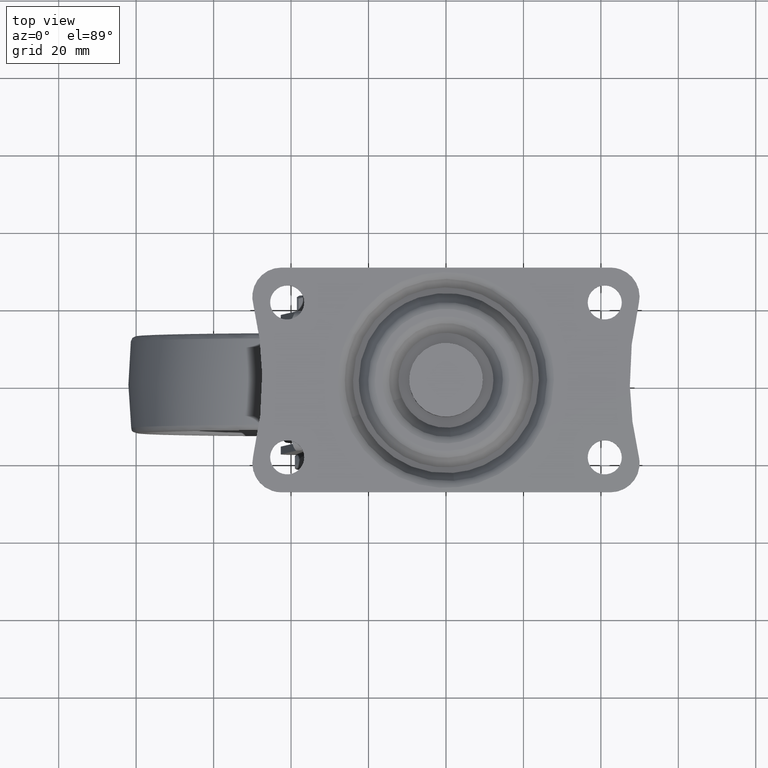
[diagram: clean part render]
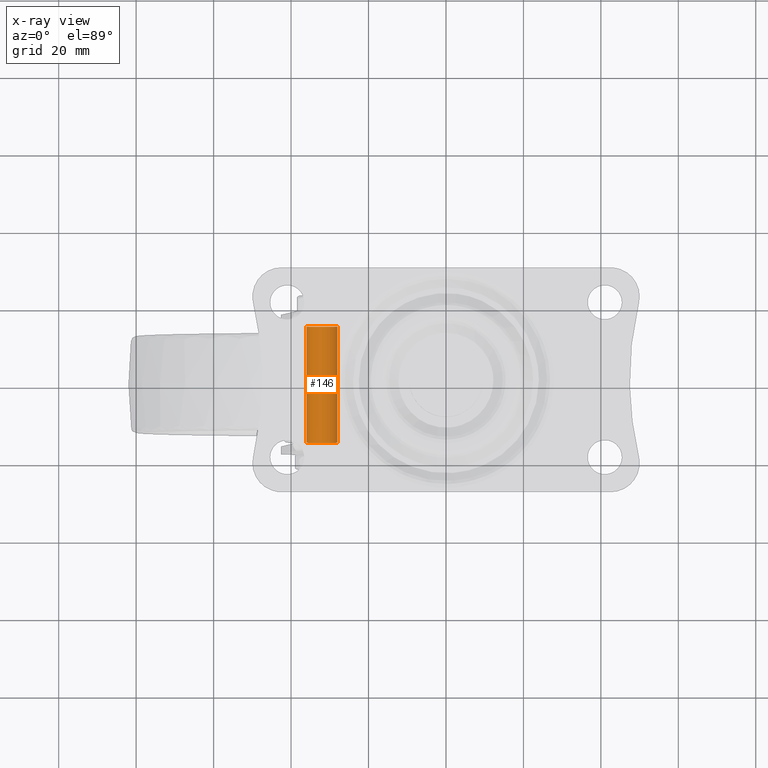
[diagram: x-ray — body ghosted, one internal face saturated and labeled with its STEP entity id]
A machine part, top view, then the same camera in x-ray: the body is ghosted and one INTERNAL B-rep face — a face not visible from any outside direction — is saturated and labeled: STEP entity #146.
In plain terms, the highlighted face is a freeform B-spline surface patch.
Its self-contained STEP definition (entity closure, byte-faithful):
#44=CARTESIAN_POINT('',(-28.027961894545228,-15.750000000000005,-69.527863061372955));
#45=CARTESIAN_POINT('',(-28.014449538205461,-15.750000000000007,-69.641541085448068));
#46=CARTESIAN_POINT('',(-28.007460806312420,-15.750000000000000,-69.755805841860564));
#47=CARTESIAN_POINT('',(-27.763266648172987,-15.750000000000009,-73.748345035548141));
#48=CARTESIAN_POINT('',(-31.755805841860560,-15.750000000000000,-73.992539193687577));
#49=CARTESIAN_POINT('',(-35.748345035548148,-15.750000000000009,-74.236733351827013));
#50=CARTESIAN_POINT('',(-35.992539193687577,-15.750000000000000,-70.244194158139436));
#51=CARTESIAN_POINT('',(-28.027961894545228,15.768749999999862,-69.527863061372955));
#52=CARTESIAN_POINT('',(-28.014449538205461,15.768749999999864,-69.641541085448068));
#53=CARTESIAN_POINT('',(-28.007460806312420,15.768749999999860,-69.755805841860564));
#54=CARTESIAN_POINT('',(-27.763266648172987,15.768749999999855,-73.748345035548141));
#55=CARTESIAN_POINT('',(-31.755805841860560,15.768749999999860,-73.992539193687577));
#56=CARTESIAN_POINT('',(-35.748345035548148,15.768749999999855,-74.236733351827013));
#57=CARTESIAN_POINT('',(-35.992539193687577,15.768749999999860,-70.244194158139436));
#65=(BOUNDED_SURFACE()B_SPLINE_SURFACE(2,1,((#44,#51),(#45,#52),(#46,#53),(#47,#54),(#48,#55),(#49,#56),(#50,#57)),.UNSPECIFIED.,.F.,.F.,.U.)B_SPLINE_SURFACE_WITH_KNOTS((3,2,2,3),(2,2),(0.0,0.265096679918789,6.892513677888497,13.519930675858211),(0.0,31.518749999999869),.UNSPECIFIED.)GEOMETRIC_REPRESENTATION_ITEM()RATIONAL_B_SPLINE_SURFACE(((0.977505800795127,0.977505800795127),(0.988284271247462,0.988284271247462),(1.0,1.0),(0.707106781186548,0.707106781186548),(1.0,1.0),(0.707106781186548,0.707106781186548),(1.0,1.0)))REPRESENTATION_ITEM('')SURFACE());
#66=CARTESIAN_POINT('',(-28.027961894591488,-15.0,-69.527863060983691));
#67=VERTEX_POINT('',#66);
#68=CARTESIAN_POINT('',(-32.0,-15.0,-74.000000000000128));
#69=VERTEX_POINT('',#68);
#70=CARTESIAN_POINT('',(-28.027961894591488,-15.000000000000005,-69.527863060983691));
#71=CARTESIAN_POINT('',(-27.999999999999886,-14.999999999999996,-69.763103520998968));
#72=CARTESIAN_POINT('',(-27.999999999999890,-15.0,-70.0));
#73=CARTESIAN_POINT('',(-27.999999999999883,-14.999999999999995,-74.000000000000128));
#74=CARTESIAN_POINT('',(-32.0,-15.0,-74.000000000000128));
#82=(BOUNDED_CURVE()B_SPLINE_CURVE(2,(#70,#71,#72,#73,#74),.UNSPECIFIED.,.F.,.U.)B_SPLINE_CURVE_WITH_KNOTS((3,2,3),(0.229562473482519,0.250000000000000,0.500000000000000),.UNSPECIFIED.)CURVE()GEOMETRIC_REPRESENTATION_ITEM()RATIONAL_B_SPLINE_CURVE((0.956026754122959,0.976055948294839,1.0,0.707106781186548,1.0))REPRESENTATION_ITEM(''));
#83=EDGE_CURVE('',#67,#69,#82,.T.);
#84=ORIENTED_EDGE('',*,*,#83,.F.);
#85=CARTESIAN_POINT('',(-28.027961894591488,14.999999999999860,-69.527863060983691));
#86=VERTEX_POINT('',#85);
#87=CARTESIAN_POINT('',(-28.027961894591488,-15.0,-69.527863060983691));
#88=CARTESIAN_POINT('',(-28.027961894591488,14.999999999999860,-69.527863060983691));
#89=QUASI_UNIFORM_CURVE('',1,(#87,#88),.UNSPECIFIED.,.F.,.U.);
#90=EDGE_CURVE('',#67,#86,#89,.T.);
#91=ORIENTED_EDGE('',*,*,#90,.T.);
#92=CARTESIAN_POINT('',(-32.0,14.999999999999860,-74.000000000000128));
#93=VERTEX_POINT('',#92);
#94=CARTESIAN_POINT('',(-28.027961894591488,14.999999999999858,-69.527863060983691));
#95=CARTESIAN_POINT('',(-27.999999999999886,14.999999999999863,-69.763103520998968));
#96=CARTESIAN_POINT('',(-27.999999999999890,14.999999999999860,-70.0));
#97=CARTESIAN_POINT('',(-27.999999999999883,14.999999999999869,-74.000000000000128));
#98=CARTESIAN_POINT('',(-32.0,14.999999999999860,-74.000000000000128));
#106=(BOUNDED_CURVE()B_SPLINE_CURVE(2,(#94,#95,#96,#97,#98),.UNSPECIFIED.,.F.,.U.)B_SPLINE_CURVE_WITH_KNOTS((3,2,3),(0.229562473482520,0.250000000000000,0.500000000000000),.UNSPECIFIED.)CURVE()GEOMETRIC_REPRESENTATION_ITEM()RATIONAL_B_SPLINE_CURVE((0.956026754122960,0.976055948294840,1.0,0.707106781186548,1.0))REPRESENTATION_ITEM(''));
#107=EDGE_CURVE('',#86,#93,#106,.T.);
#108=ORIENTED_EDGE('',*,*,#107,.T.);
#109=CARTESIAN_POINT('',(-35.992539193669003,14.999999999999860,-70.244194158443307));
#110=VERTEX_POINT('',#109);
#111=CARTESIAN_POINT('',(-32.0,14.999999999999860,-74.000000000000128));
#112=CARTESIAN_POINT('',(-35.762824267049041,14.999999999999861,-74.000000000000142));
#113=CARTESIAN_POINT('',(-35.992539193669003,14.999999999999861,-70.244194158443307));
#121=(BOUNDED_CURVE()B_SPLINE_CURVE(2,(#111,#112,#113),.UNSPECIFIED.,.F.,.U.)B_SPLINE_CURVE_WITH_KNOTS((3,3),(0.500000000000000,0.739332962215704),.UNSPECIFIED.)CURVE()GEOMETRIC_REPRESENTATION_ITEM()RATIONAL_B_SPLINE_CURVE((1.0,0.719603993313937,0.976072041616912))REPRESENTATION_ITEM(''));
#122=EDGE_CURVE('',#93,#110,#121,.T.);
#123=ORIENTED_EDGE('',*,*,#122,.T.);
#124=CARTESIAN_POINT('',(-35.992539193669003,-15.0,-70.244194158443321));
#125=VERTEX_POINT('',#124);
#126=CARTESIAN_POINT('',(-35.992539193669003,-15.0,-70.244194158443321));
#127=CARTESIAN_POINT('',(-35.992539193669003,14.999999999999860,-70.244194158443307));
#128=QUASI_UNIFORM_CURVE('',1,(#126,#127),.UNSPECIFIED.,.F.,.U.);
#129=EDGE_CURVE('',#125,#110,#128,.T.);
#130=ORIENTED_EDGE('',*,*,#129,.F.);
#131=CARTESIAN_POINT('',(-32.0,-15.0,-74.000000000000128));
#132=CARTESIAN_POINT('',(-35.762824267049041,-15.0,-74.000000000000142));
#133=CARTESIAN_POINT('',(-35.992539193669003,-15.000000000000005,-70.244194158443321));
#141=(BOUNDED_CURVE()B_SPLINE_CURVE(2,(#131,#132,#133),.UNSPECIFIED.,.F.,.U.)B_SPLINE_CURVE_WITH_KNOTS((3,3),(0.500000000000000,0.739332962215704),.UNSPECIFIED.)CURVE()GEOMETRIC_REPRESENTATION_ITEM()RATIONAL_B_SPLINE_CURVE((1.0,0.719603993313937,0.976072041616912))REPRESENTATION_ITEM(''));
#142=EDGE_CURVE('',#69,#125,#141,.T.);
#143=ORIENTED_EDGE('',*,*,#142,.F.);
#144=EDGE_LOOP('',(#84,#91,#108,#123,#130,#143));
#145=FACE_OUTER_BOUND('',#144,.T.);
#146=ADVANCED_FACE('',(#145),#65,.F.);